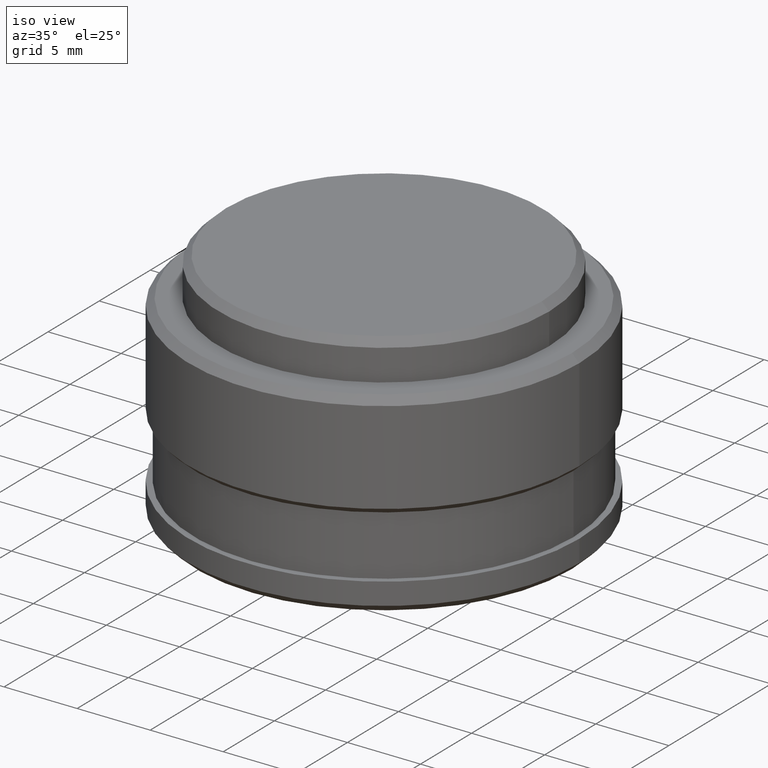
[diagram: clean part render]
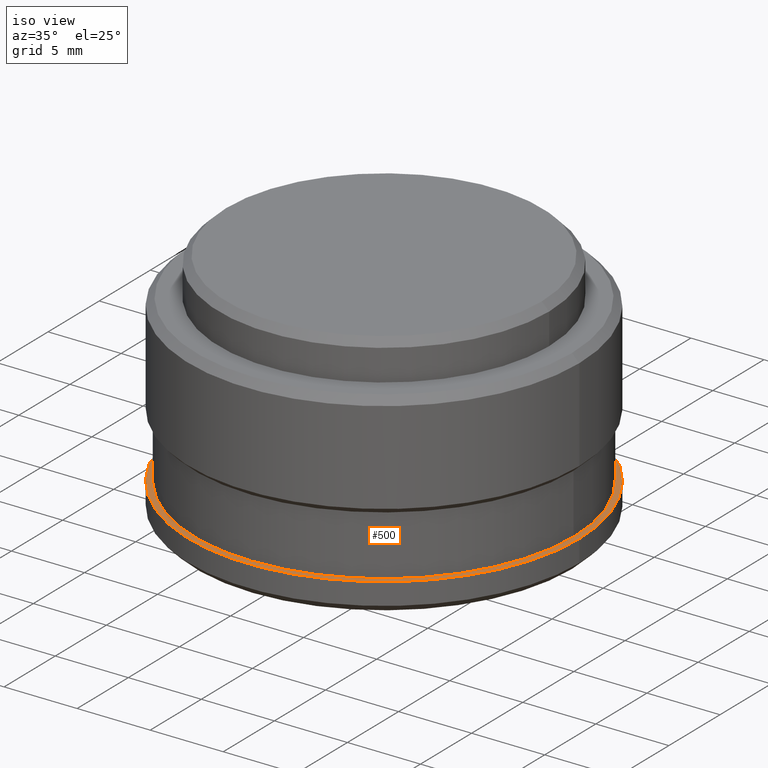
[diagram: same view with one face highlighted and labeled with its STEP entity id]
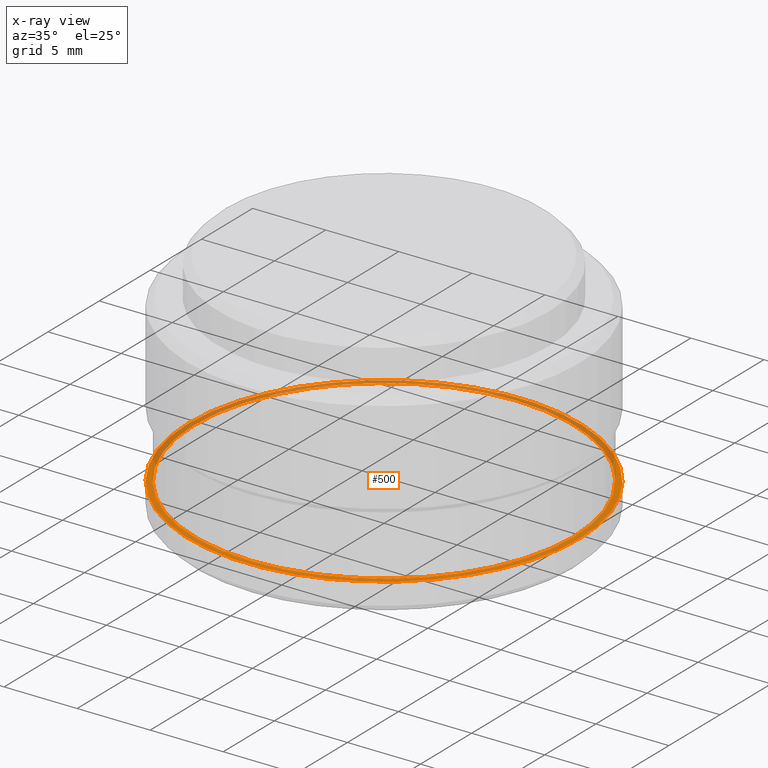
[diagram: x-ray of the same camera — body ghosted, the highlighted face saturated]
A machine part, iso view. The second image highlights one B-rep face of the part: STEP entity #500.
The next image is the same camera in x-ray: the body ghosted, the highlighted face saturated — about 44% of this face is hidden behind the body in this view.
In plain terms, the highlighted planar face has unit normal (0, 0, 1).
Its self-contained STEP definition (entity closure, byte-faithful):
#13 = DIRECTION ( 'NONE',  ( 1.000000000000000000, 0.0000000000000000000, 0.0000000000000000000 ) ) ;
#29 = CARTESIAN_POINT ( 'NONE',  ( 13.37000000000000100, 1.637352770460011400E-015, 2.000000000000000000 ) ) ;
#46 = AXIS2_PLACEMENT_3D ( 'NONE', #58, #320, #13 ) ;
#58 = CARTESIAN_POINT ( 'NONE',  ( 0.0000000000000000000, 0.0000000000000000000, 2.000000000000000000 ) ) ;
#64 = DIRECTION ( 'NONE',  ( 1.000000000000000000, 0.0000000000000000000, 0.0000000000000000000 ) ) ;
#73 = PLANE ( 'NONE',  #112 ) ;
#90 = EDGE_CURVE ( 'NONE', #347, #503, #438, .T. ) ;
#109 = CARTESIAN_POINT ( 'NONE',  ( 0.0000000000000000000, 0.0000000000000000000, 2.000000000000000000 ) ) ;
#112 = AXIS2_PLACEMENT_3D ( 'NONE', #296, #470, #118 ) ;
#117 = ORIENTED_EDGE ( 'NONE', *, *, #381, .F. ) ;
#118 = DIRECTION ( 'NONE',  ( 1.000000000000000000, 0.0000000000000000000, -0.0000000000000000000 ) ) ;
#124 = EDGE_LOOP ( 'NONE', ( #561, #181 ) ) ;
#128 = EDGE_LOOP ( 'NONE', ( #117, #346 ) ) ;
#131 = CIRCLE ( 'NONE', #392, 12.97000000000000200 ) ;
#148 = DIRECTION ( 'NONE',  ( 0.0000000000000000000, 0.0000000000000000000, 1.000000000000000000 ) ) ;
#149 = FACE_OUTER_BOUND ( 'NONE', #124, .T. ) ;
#171 = CARTESIAN_POINT ( 'NONE',  ( 12.97000000000000200, 1.588366898494117400E-015, 2.000000000000000000 ) ) ;
#181 = ORIENTED_EDGE ( 'NONE', *, *, #90, .T. ) ;
#204 = CARTESIAN_POINT ( 'NONE',  ( -12.97000000000000200, 0.0000000000000000000, 2.000000000000000000 ) ) ;
#216 = DIRECTION ( 'NONE',  ( 1.000000000000000000, 0.0000000000000000000, 0.0000000000000000000 ) ) ;
#247 = DIRECTION ( 'NONE',  ( 1.000000000000000000, 0.0000000000000000000, 0.0000000000000000000 ) ) ;
#259 = CARTESIAN_POINT ( 'NONE',  ( 0.0000000000000000000, 0.0000000000000000000, 2.000000000000000000 ) ) ;
#260 = EDGE_CURVE ( 'NONE', #271, #322, #549, .T. ) ;
#271 = VERTEX_POINT ( 'NONE', #171 ) ;
#275 = CIRCLE ( 'NONE', #569, 13.37000000000000100 ) ;
#296 = CARTESIAN_POINT ( 'NONE',  ( 0.0000000000000000000, 0.0000000000000000000, 2.000000000000000000 ) ) ;
#320 = DIRECTION ( 'NONE',  ( 0.0000000000000000000, 0.0000000000000000000, 1.000000000000000000 ) ) ;
#322 = VERTEX_POINT ( 'NONE', #204 ) ;
#323 = EDGE_CURVE ( 'NONE', #503, #347, #275, .T. ) ;
#324 = CARTESIAN_POINT ( 'NONE',  ( 0.0000000000000000000, 0.0000000000000000000, 2.000000000000000000 ) ) ;
#346 = ORIENTED_EDGE ( 'NONE', *, *, #260, .F. ) ;
#347 = VERTEX_POINT ( 'NONE', #29 ) ;
#378 = AXIS2_PLACEMENT_3D ( 'NONE', #259, #535, #216 ) ;
#381 = EDGE_CURVE ( 'NONE', #322, #271, #131, .T. ) ;
#388 = FACE_BOUND ( 'NONE', #128, .T. ) ;
#392 = AXIS2_PLACEMENT_3D ( 'NONE', #324, #523, #247 ) ;
#438 = CIRCLE ( 'NONE', #46, 13.37000000000000100 ) ;
#470 = DIRECTION ( 'NONE',  ( 0.0000000000000000000, 0.0000000000000000000, 1.000000000000000000 ) ) ;
#478 = CARTESIAN_POINT ( 'NONE',  ( -13.37000000000000100, 0.0000000000000000000, 2.000000000000000000 ) ) ;
#500 = ADVANCED_FACE ( 'NONE', ( #388, #149 ), #73, .T. ) ;
#503 = VERTEX_POINT ( 'NONE', #478 ) ;
#523 = DIRECTION ( 'NONE',  ( 0.0000000000000000000, 0.0000000000000000000, 1.000000000000000000 ) ) ;
#535 = DIRECTION ( 'NONE',  ( 0.0000000000000000000, 0.0000000000000000000, 1.000000000000000000 ) ) ;
#549 = CIRCLE ( 'NONE', #378, 12.97000000000000200 ) ;
#561 = ORIENTED_EDGE ( 'NONE', *, *, #323, .T. ) ;
#569 = AXIS2_PLACEMENT_3D ( 'NONE', #109, #148, #64 ) ;